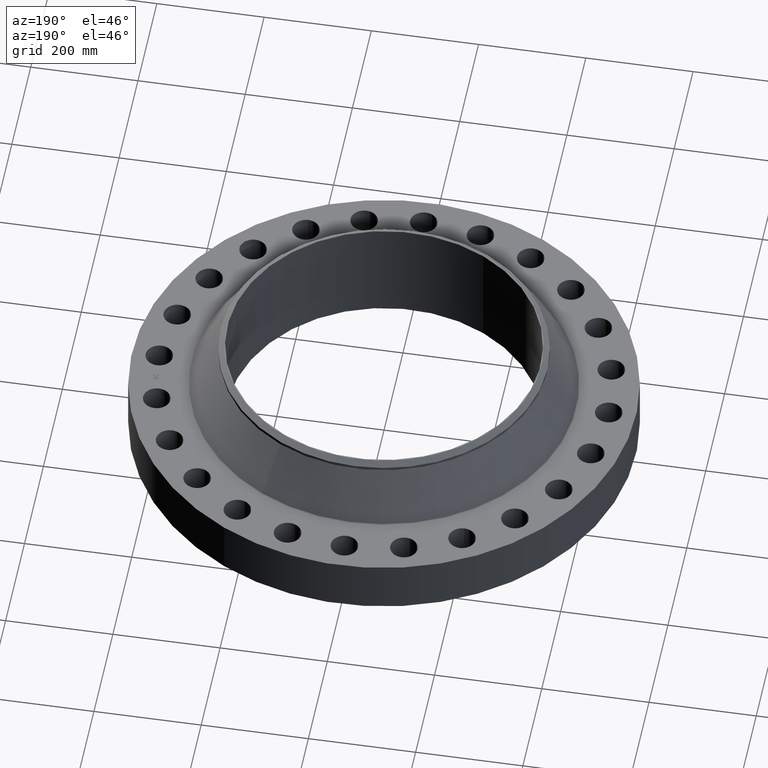
[diagram: clean part render]
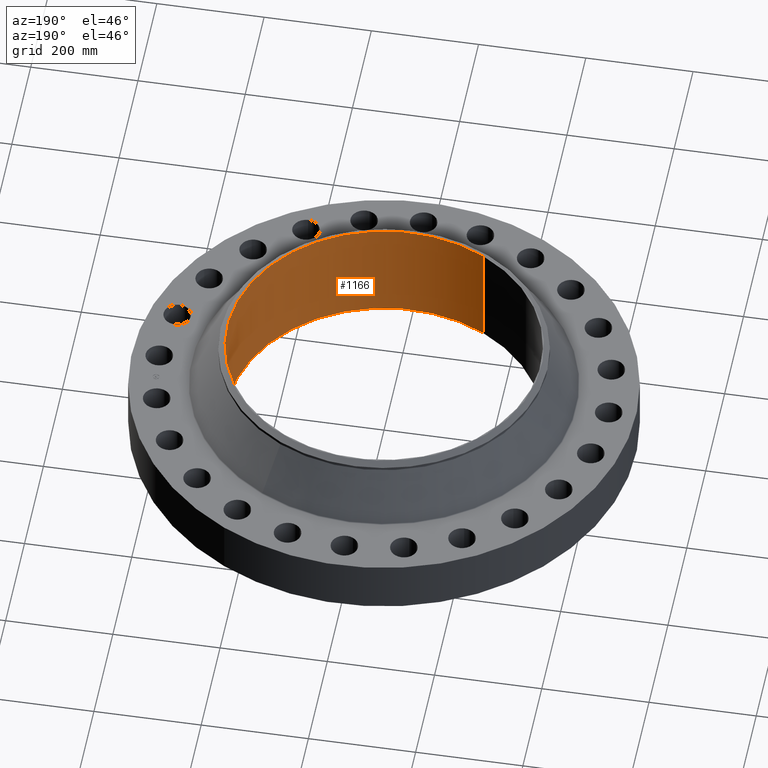
[diagram: same view with one face highlighted and labeled with its STEP entity id]
A machine part, auxiliary view. The second image highlights one B-rep face of the part: STEP entity #1166.
In plain terms, the highlighted cylindrical surface (partial cylindrical patch) has radius 292.1 mm, axis along (0, 0, -1).
Its self-contained STEP definition (entity closure, byte-faithful):
#165=AXIS2_PLACEMENT_3D('Circle Axis2P3D',#163,#164,$) ;
#1139=AXIS2_PLACEMENT_3D('Cylinder Axis2P3D',#1136,#1137,#1138) ;
#1143=AXIS2_PLACEMENT_3D('Circle Axis2P3D',#1141,#1142,$) ;
#163=CARTESIAN_POINT('Axis2P3D Location',(-4.36631308537E-011,1.85748179742E-012,0.)) ;
#167=CARTESIAN_POINT('Vertex',(5.51339369395,10.0921994617,3.46649743031E-011)) ;
#169=CARTESIAN_POINT('Vertex',(-5.51339369395,-10.0921994617,-8.95171950564E-014)) ;
#1136=CARTESIAN_POINT('Axis2P3D Location',(0.,0.,4.00000000002)) ;
#1141=CARTESIAN_POINT('Axis2P3D Location',(0.,0.,8.00000000001)) ;
#1145=CARTESIAN_POINT('Vertex',(5.51339369392,10.0921994618,8.00000000003)) ;
#1147=CARTESIAN_POINT('Vertex',(-5.51339369392,-10.0921994617,8.00000000003)) ;
#1150=CARTESIAN_POINT('Line Origine',(5.51339369395,10.0921994617,4.00000000002)) ;
#1155=CARTESIAN_POINT('Line Origine',(-5.51339369395,-10.0921994617,4.00000000002)) ;
#164=DIRECTION('Axis2P3D Direction',(0.,0.,-0.0393700787402)) ;
#1137=DIRECTION('Axis2P3D Direction',(0.,0.,-0.0393700787402)) ;
#1138=DIRECTION('Axis2P3D XDirection',(0.0188750212049,0.0345504945626,0.)) ;
#1142=DIRECTION('Axis2P3D Direction',(0.,0.,-0.0393700787402)) ;
#1151=DIRECTION('Vector Direction',(0.,0.,-0.0393700787402)) ;
#1156=DIRECTION('Vector Direction',(0.,0.,-0.0393700787402)) ;
#1152=VECTOR('Line Direction',#1151,0.0393700787402) ;
#1157=VECTOR('Line Direction',#1156,0.0393700787402) ;
#1161=ORIENTED_EDGE('',*,*,#1149,.F.) ;
#1162=ORIENTED_EDGE('',*,*,#1154,.T.) ;
#1163=ORIENTED_EDGE('',*,*,#171,.T.) ;
#1164=ORIENTED_EDGE('',*,*,#1159,.F.) ;
#1166=ADVANCED_FACE('PartBody',(#1165),#1140,.F.) ;
#166=CIRCLE('generated circle',#165,11.5) ;
#1144=CIRCLE('generated circle',#1143,11.5) ;
#1140=CYLINDRICAL_SURFACE('generated cylinder',#1139,11.5) ;
#171=EDGE_CURVE('',#168,#170,#166,.T.) ;
#1149=EDGE_CURVE('',#1146,#1148,#1144,.T.) ;
#1154=EDGE_CURVE('',#1146,#168,#1153,.T.) ;
#1159=EDGE_CURVE('',#1148,#170,#1158,.T.) ;
#1160=EDGE_LOOP('',(#1161,#1162,#1163,#1164)) ;
#1165=FACE_OUTER_BOUND('',#1160,.T.) ;
#1153=LINE('Line',#1150,#1152) ;
#1158=LINE('Line',#1155,#1157) ;
#168=VERTEX_POINT('',#167) ;
#170=VERTEX_POINT('',#169) ;
#1146=VERTEX_POINT('',#1145) ;
#1148=VERTEX_POINT('',#1147) ;